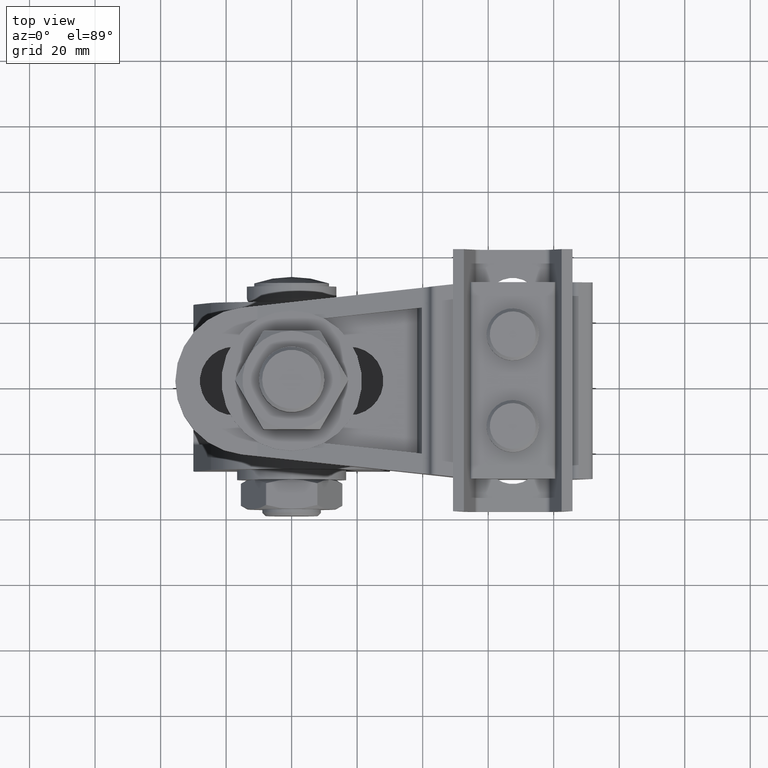
[diagram: clean part render]
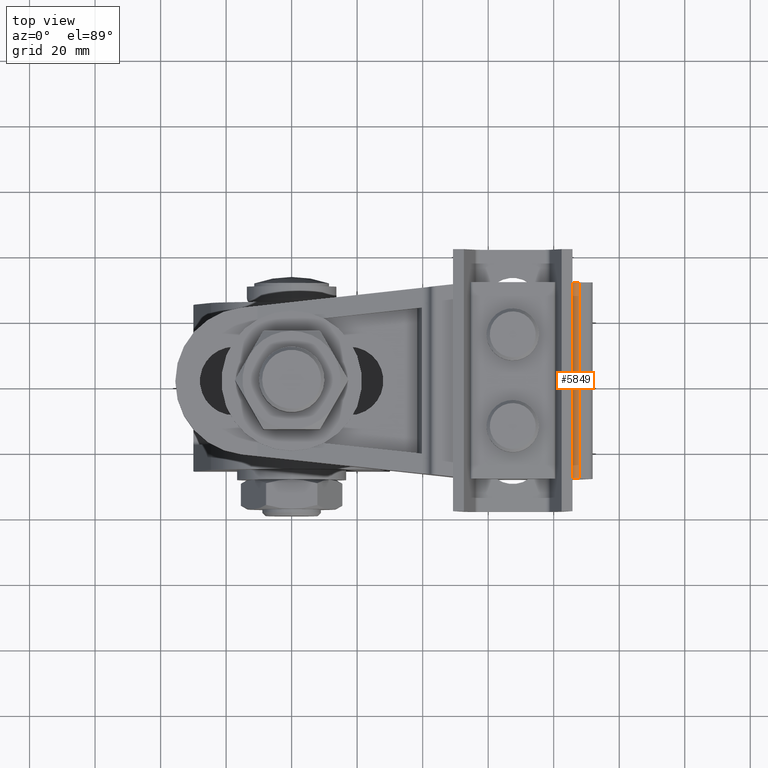
[diagram: same view with one face highlighted and labeled with its STEP entity id]
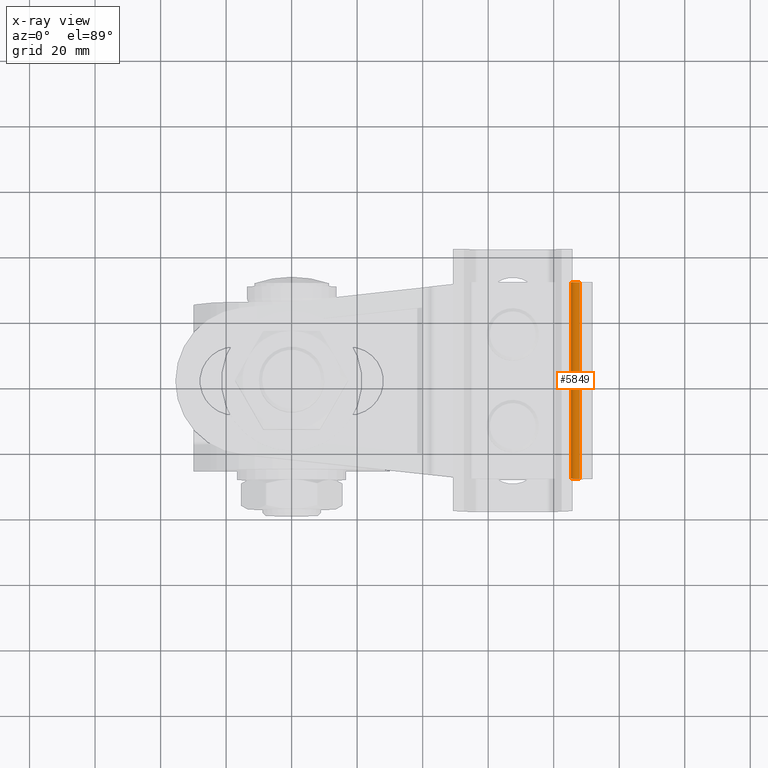
[diagram: x-ray of the same camera — body ghosted, the highlighted face saturated]
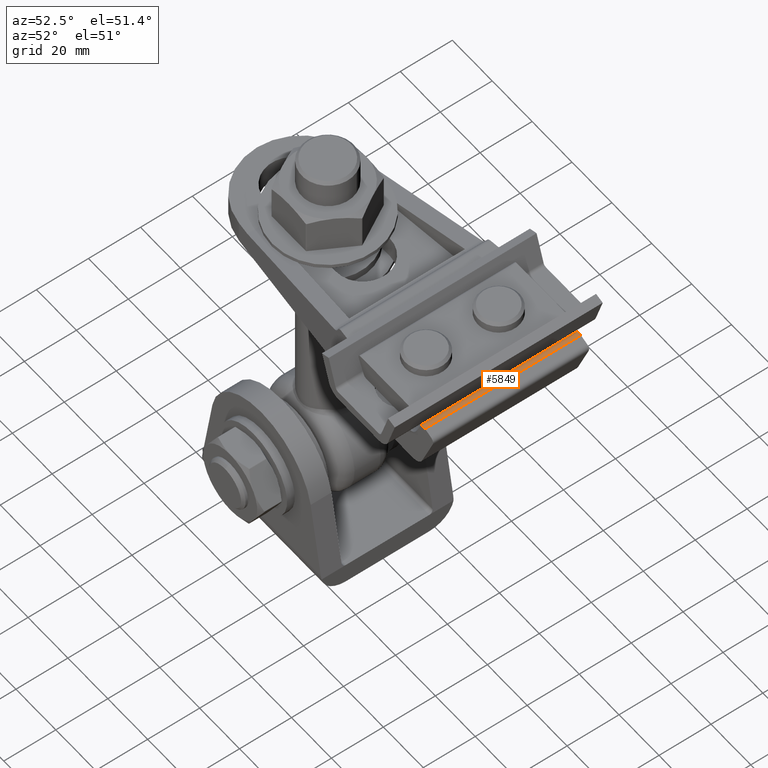
[diagram: same view with one face highlighted and labeled with its STEP entity id]
A machine part, top view. The second image highlights one B-rep face of the part: STEP entity #5849.
The next image is the same camera in x-ray: the body ghosted, the highlighted face saturated — about 0% of this face is hidden behind the body in this view.
A second angle (auxiliary view) of the same face is appended — the face is thin or edge-on in the first view.
In plain terms, the highlighted cylindrical surface (edge-blend (fillet) strip) has radius 2 mm, axis along (0, -1, 0).
Its self-contained STEP definition (entity closure, byte-faithful):
#6 = LINE ( 'NONE', #9885, #8742 ) ;
#392 = DIRECTION ( 'NONE',  ( 0.000000000000000000, -1.000000000000000000, 0.000000000000000000 ) ) ;
#1000 = AXIS2_PLACEMENT_3D ( 'NONE', #10350, #1859, #13679 ) ;
#1555 = CARTESIAN_POINT ( 'NONE',  ( -56.76067043964037140, 30.00000000000000000, -8.645798623924278559 ) ) ;
#1859 = DIRECTION ( 'NONE',  ( 0.000000000000000000, 1.000000000000000000, 0.000000000000000000 ) ) ;
#2100 = VERTEX_POINT ( 'NONE', #8624 ) ;
#2995 = DIRECTION ( 'NONE',  ( -0.000000000000000000, -1.000000000000000000, -0.000000000000000000 ) ) ;
#4894 = EDGE_LOOP ( 'NONE', ( #18513, #8559, #6466, #20881 ) ) ;
#5560 = CIRCLE ( 'NONE', #1000, 2.000000000000000000 ) ;
#5849 = ADVANCED_FACE ( 'NONE', ( #6777 ), #12047, .T. ) ;
#6466 = ORIENTED_EDGE ( 'NONE', *, *, #12280, .F. ) ;
#6746 = VECTOR ( 'NONE', #8339, 1000.000000000000000 ) ;
#6777 = FACE_OUTER_BOUND ( 'NONE', #4894, .T. ) ;
#8339 = DIRECTION ( 'NONE',  ( -0.000000000000000000, 1.000000000000000000, -0.000000000000000000 ) ) ;
#8559 = ORIENTED_EDGE ( 'NONE', *, *, #14604, .F. ) ;
#8624 = CARTESIAN_POINT ( 'NONE',  ( -56.76067043964037140, 30.00000000000000000, -8.645798623924278559 ) ) ;
#8742 = VECTOR ( 'NONE', #11453, 1000.000000000000000 ) ;
#8814 = CARTESIAN_POINT ( 'NONE',  ( -58.61487181571609284, 30.00000000000000000, -7.896173879829674114 ) ) ;
#8936 = CIRCLE ( 'NONE', #13012, 2.000000000000000000 ) ;
#9346 = EDGE_CURVE ( 'NONE', #13779, #17695, #6, .T. ) ;
#9403 = CARTESIAN_POINT ( 'NONE',  ( -59.36449655981069640, -30.00000000000000000, -9.750375255905398220 ) ) ;
#9885 = CARTESIAN_POINT ( 'NONE',  ( -59.36449655981069640, 30.00000000000000000, -9.750375255905398220 ) ) ;
#10182 = LINE ( 'NONE', #1555, #6746 ) ;
#10350 = CARTESIAN_POINT ( 'NONE',  ( -58.61487181571609284, 30.00000000000000000, -7.896173879829674114 ) ) ;
#10821 = DIRECTION ( 'NONE',  ( 0.000000000000000000, 0.000000000000000000, -1.000000000000000000 ) ) ;
#11453 = DIRECTION ( 'NONE',  ( 0.000000000000000000, -1.000000000000000000, 0.000000000000000000 ) ) ;
#11942 = CARTESIAN_POINT ( 'NONE',  ( -59.36449655981069640, 30.00000000000000000, -9.750375255905398220 ) ) ;
#12047 = CYLINDRICAL_SURFACE ( 'NONE', #13125, 2.000000000000000000 ) ;
#12280 = EDGE_CURVE ( 'NONE', #17695, #13931, #8936, .T. ) ;
#13012 = AXIS2_PLACEMENT_3D ( 'NONE', #18233, #2995, #18297 ) ;
#13125 = AXIS2_PLACEMENT_3D ( 'NONE', #8814, #392, #10821 ) ;
#13679 = DIRECTION ( 'NONE',  ( 0.000000000000000000, 0.000000000000000000, 1.000000000000000000 ) ) ;
#13779 = VERTEX_POINT ( 'NONE', #11942 ) ;
#13931 = VERTEX_POINT ( 'NONE', #14452 ) ;
#14452 = CARTESIAN_POINT ( 'NONE',  ( -56.76067043964037140, -30.00000000000000000, -8.645798623924278559 ) ) ;
#14604 = EDGE_CURVE ( 'NONE', #13931, #2100, #10182, .T. ) ;
#17695 = VERTEX_POINT ( 'NONE', #9403 ) ;
#18233 = CARTESIAN_POINT ( 'NONE',  ( -58.61487181571609284, -30.00000000000000000, -7.896173879829674114 ) ) ;
#18297 = DIRECTION ( 'NONE',  ( 0.000000000000000000, 0.000000000000000000, 1.000000000000000000 ) ) ;
#18513 = ORIENTED_EDGE ( 'NONE', *, *, #21928, .F. ) ;
#20881 = ORIENTED_EDGE ( 'NONE', *, *, #9346, .F. ) ;
#21928 = EDGE_CURVE ( 'NONE', #2100, #13779, #5560, .T. ) ;